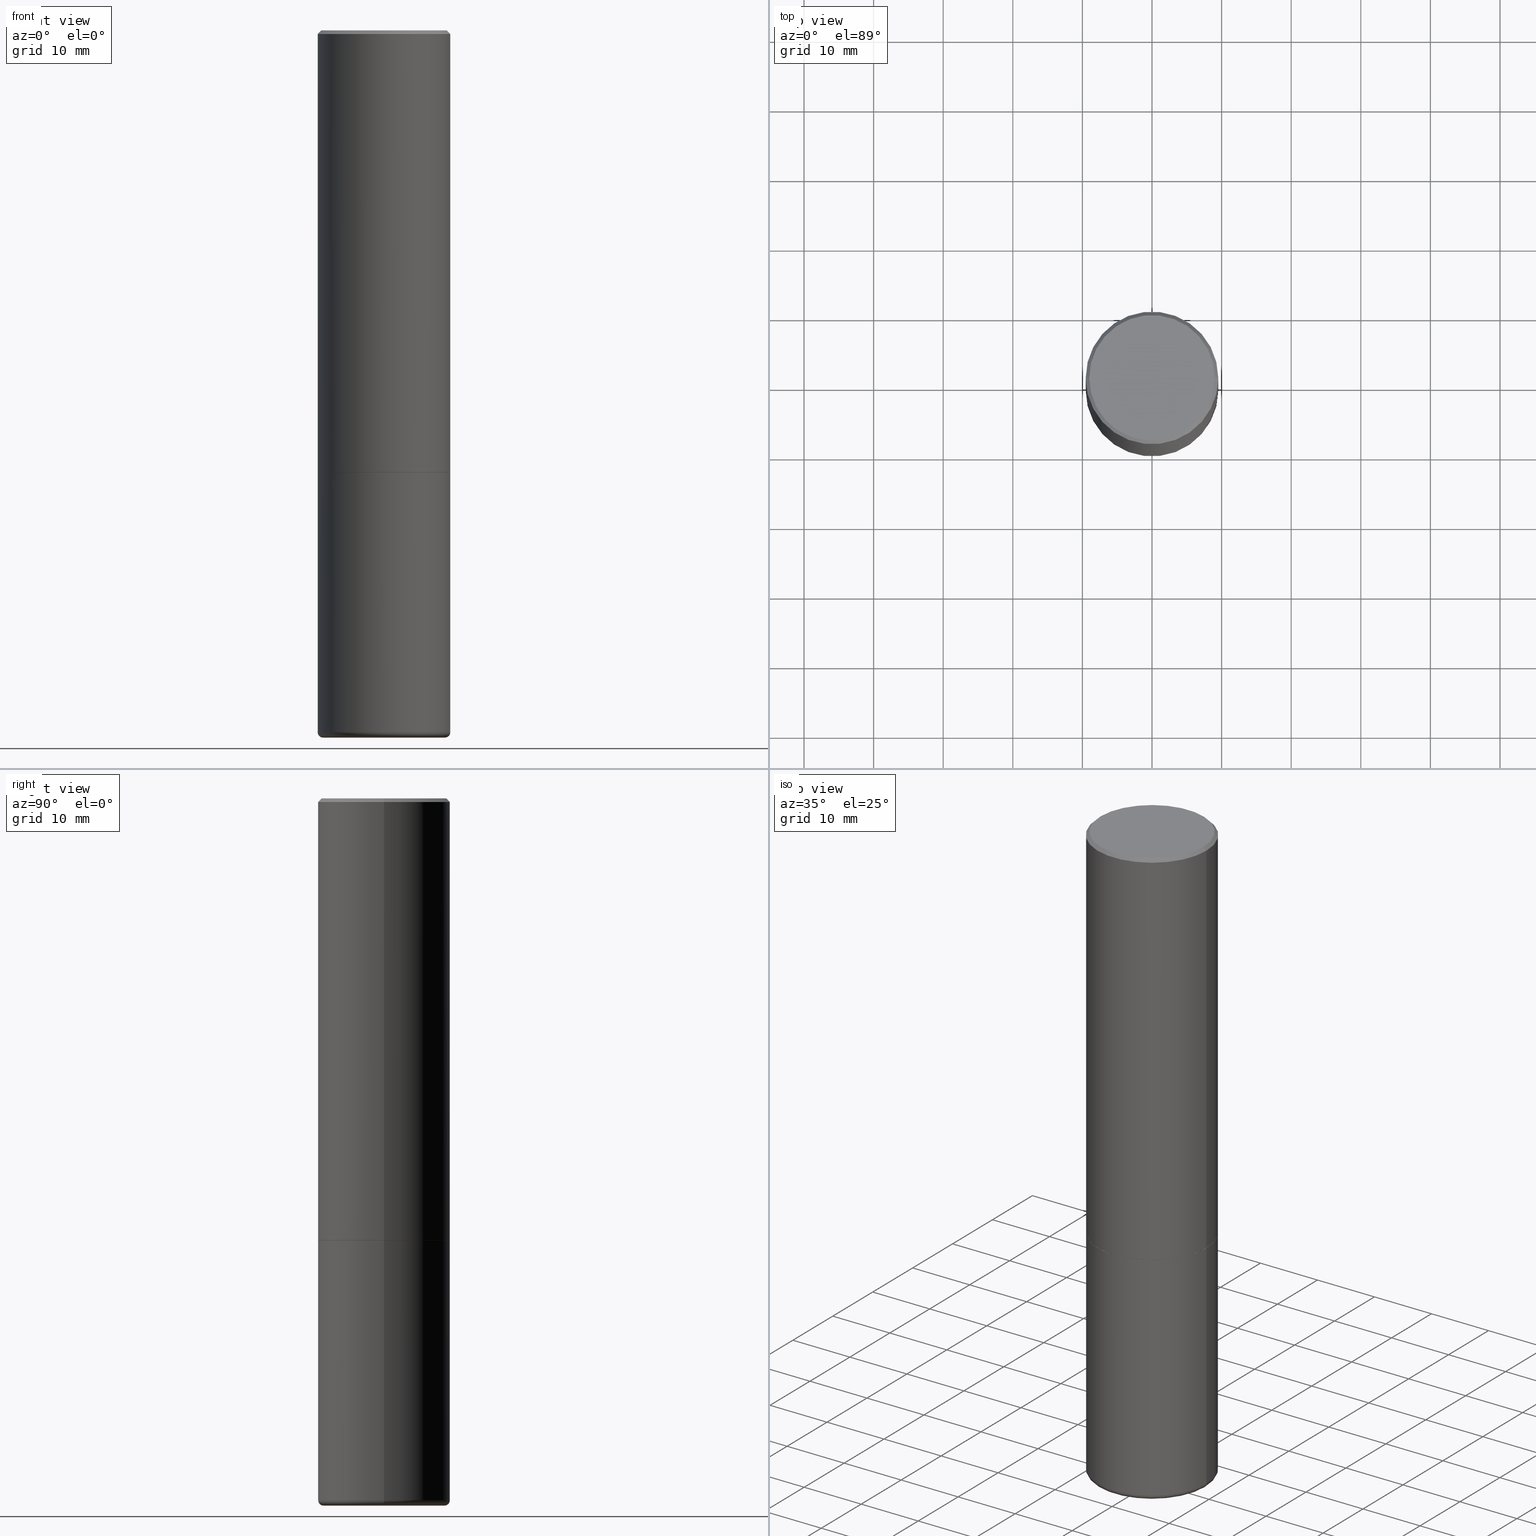
[diagram: canonical four-view strip — front | top / right | iso, engineering-drawing reading convention]
A machine part, canonical four-view strip (front | top / right | iso — engineering-drawing reading convention). The complete STEP part file that produces these views, byte-faithful:
ISO-10303-21;
HEADER;
FILE_DESCRIPTION (( 'STEP AP203' ),
    '1' );
FILE_NAME ('38092.STEP',
    '2023-03-22T20:17:00',
    ( '' ),
    ( '' ),
    'SwSTEP 2.0',
    'SolidWorks 2022',
    '' );
FILE_SCHEMA (( 'CONFIG_CONTROL_DESIGN' ));
ENDSEC;

DATA;
#1 = VECTOR ( 'NONE', #276, 39.37007874015748143 ) ;
#2 = AXIS2_PLACEMENT_3D ( 'NONE', #289, #204, #260 ) ;
#3 = FACE_OUTER_BOUND ( 'NONE', #13, .T. ) ;
#4 = EDGE_CURVE ( 'NONE', #152, #327, #182, .T. ) ;
#5 = LINE ( 'NONE', #280, #1 ) ;
#6 = DIRECTION ( 'NONE',  ( 1.000000000000000000, -6.982962677686265922E-15, 4.876176775795935793E-29 ) ) ;
#7 = CC_DESIGN_SECURITY_CLASSIFICATION ( #89, ( #345 ) ) ;
#8 = CC_DESIGN_PERSON_AND_ORGANIZATION_ASSIGNMENT ( #90, #399, ( #102 ) ) ;
#9 = FACE_OUTER_BOUND ( 'NONE', #384, .T. ) ;
#10 = ORIENTED_EDGE ( 'NONE', *, *, #313, .F. ) ;
#11 = EDGE_CURVE ( 'NONE', #333, #53, #201, .T. ) ;
#12 = ORIENTED_EDGE ( 'NONE', *, *, #30, .T. ) ;
#13 = EDGE_LOOP ( 'NONE', ( #79, #218 ) ) ;
#14 = CIRCLE ( 'NONE', #222, 0.3549999999999997047 ) ;
#15 = EDGE_LOOP ( 'NONE', ( #148, #326, #351, #267 ) ) ;
#16 = VERTEX_POINT ( 'NONE', #95 ) ;
#17 = APPROVAL_ROLE ( '' ) ;
#18 = CARTESIAN_POINT ( 'NONE',  ( 1.060161601562722349E-27, -1.513629795093808134E-13, -43.35208034064213933 ) ) ;
#19 = ADVANCED_FACE ( 'NONE', ( #172 ), #150, .F. ) ;
#20 = APPROVAL_STATUS ( 'not_yet_approved' ) ;
#21 = CIRCLE ( 'NONE', #128, 0.3739999999999999991 ) ;
#22 = LOCAL_TIME ( 16, 17, 0.000000000000000000, #97 ) ;
#23 = FACE_OUTER_BOUND ( 'NONE', #364, .T. ) ;
#24 = AXIS2_PLACEMENT_3D ( 'NONE', #343, #35, #242 ) ;
#25 = PERSON_AND_ORGANIZATION ( #377, #58 ) ;
#26 = FACE_OUTER_BOUND ( 'NONE', #15, .T. ) ;
#27 = PERSON_AND_ORGANIZATION ( #377, #58 ) ;
#28 = CIRCLE ( 'NONE', #161, 0.3749999999999996669 ) ;
#29 = FACE_OUTER_BOUND ( 'NONE', #155, .T. ) ;
#30 = EDGE_CURVE ( 'NONE', #221, #257, #416, .T. ) ;
#31 = EDGE_CURVE ( 'NONE', #327, #152, #409, .T. ) ;
#32 = APPROVAL_DATE_TIME ( #167, #308 ) ;
#33 = LINE ( 'NONE', #300, #111 ) ;
#34 = CARTESIAN_POINT ( 'NONE',  ( -0.3750000000000000555, 2.664535259100376091E-15, -1.844600658845589598E-29 ) ) ;
#35 = DIRECTION ( 'NONE',  ( -2.445468806185136597E-29, 3.491481338843145583E-15, 1.000000000000000000 ) ) ;
#36 = ADVANCED_FACE ( 'NONE', ( #202 ), #317, .F. ) ;
#37 = DIRECTION ( 'NONE',  ( -1.000000000000000000, 6.982962677686265922E-15, -4.876176775795935793E-29 ) ) ;
#38 = CC_DESIGN_APPROVAL ( #308, ( #345 ) ) ;
#39 = AXIS2_PLACEMENT_3D ( 'NONE', #369, #295, #228 ) ;
#40 = LINE ( 'NONE', #415, #334 ) ;
#41 = LINE ( 'NONE', #319, #127 ) ;
#42 = EDGE_CURVE ( 'NONE', #45, #322, #411, .T. ) ;
#43 = EDGE_CURVE ( 'NONE', #191, #322, #196, .T. ) ;
#44 = DIRECTION ( 'NONE',  ( -2.445468806185136877E-29, 3.491481338843145188E-15, 1.000000000000000000 ) ) ;
#45 = VERTEX_POINT ( 'NONE', #336 ) ;
#46 = CC_DESIGN_APPROVAL ( #321, ( #89 ) ) ;
#47 =( LENGTH_UNIT ( ) NAMED_UNIT ( * ) SI_UNIT ( $, .METRE. ) );
#48 = ORIENTED_EDGE ( 'NONE', *, *, #209, .F. ) ;
#49 = ORIENTED_EDGE ( 'NONE', *, *, #405, .F. ) ;
#50 = ORIENTED_EDGE ( 'NONE', *, *, #313, .T. ) ;
#51 = AXIS2_PLACEMENT_3D ( 'NONE', #94, #332, #132 ) ;
#52 = ORIENTED_EDGE ( 'NONE', *, *, #355, .F. ) ;
#53 = VERTEX_POINT ( 'NONE', #138 ) ;
#54 = DATE_TIME_ROLE ( 'creation_date' ) ;
#55 = DIRECTION ( 'NONE',  ( -2.445468806185136597E-29, 3.491481338843145583E-15, 1.000000000000000000 ) ) ;
#56 = ADVANCED_FACE ( 'NONE', ( #229 ), #226, .T. ) ;
#57 = CARTESIAN_POINT ( 'NONE',  ( 0.3750000000000000555, -1.134731435124021338E-14, -2.500000000000000000 ) ) ;
#58 = ORGANIZATION ( 'UNSPECIFIED', 'UNSPECIFIED', '' ) ;
#59 = CALENDAR_DATE ( 2023, 22, 3 ) ;
#60 = VECTOR ( 'NONE', #243, 39.37007874015748143 ) ;
#61 = CARTESIAN_POINT ( 'NONE',  ( -0.3450000000000000289, -1.140995202544984042E-14, -3.970041113957362811 ) ) ;
#62 = ORIENTED_EDGE ( 'NONE', *, *, #389, .T. ) ;
#63 = CALENDAR_DATE ( 2023, 22, 3 ) ;
#64 = DIRECTION ( 'NONE',  ( 1.000000000000000000, -6.982962677686267499E-15, 4.883557194083113462E-29 ) ) ;
#65 = ORIENTED_EDGE ( 'NONE', *, *, #391, .F. ) ;
#66 = APPLICATION_PROTOCOL_DEFINITION ( 'international standard', 'config_control_design', 1994, #407 ) ;
#67 = DIRECTION ( 'NONE',  ( 1.000000000000000000, -6.982962677686267499E-15, 4.883557194083113462E-29 ) ) ;
#68 = DIRECTION ( 'NONE',  ( -2.445468806185136597E-29, 3.491481338843145583E-15, 1.000000000000000000 ) ) ;
#69 = AXIS2_PLACEMENT_3D ( 'NONE', #282, #251, #114 ) ;
#70 = AXIS2_PLACEMENT_3D ( 'NONE', #246, #412, #307 ) ;
#71 = DIRECTION ( 'NONE',  ( 1.000000000000000000, -6.982962677686268288E-15, 0.000000000000000000 ) ) ;
#72 = ADVANCED_FACE ( 'NONE', ( #397 ), #425, .T. ) ;
#73 = DIRECTION ( 'NONE',  ( -2.445468806185136597E-29, 3.491481338843145583E-15, 1.000000000000000000 ) ) ;
#74 = LINE ( 'NONE', #216, #60 ) ;
#75 = CIRCLE ( 'NONE', #70, 0.3750000000000000555 ) ;
#76 = EDGE_CURVE ( 'NONE', #327, #221, #325, .T. ) ;
#77 = DIRECTION ( 'NONE',  ( -2.445468806185136597E-29, 3.491481338843145583E-15, 1.000000000000000000 ) ) ;
#78 = FACE_OUTER_BOUND ( 'NONE', #353, .T. ) ;
#79 = ORIENTED_EDGE ( 'NONE', *, *, #199, .T. ) ;
#80 = DIRECTION ( 'NONE',  ( 2.445468806185136597E-29, -3.491481338843145583E-15, -1.000000000000000000 ) ) ;
#81 = VERTEX_POINT ( 'NONE', #57 ) ;
#82 = APPROVAL_PERSON_ORGANIZATION ( #195, #308, #17 ) ;
#83 = AXIS2_PLACEMENT_3D ( 'NONE', #175, #105, #375 ) ;
#84 = AXIS2_PLACEMENT_3D ( 'NONE', #151, #284, #6 ) ;
#85 = EDGE_LOOP ( 'NONE', ( #10, #12, #387, #134 ) ) ;
#86 = ADVANCED_FACE ( 'NONE', ( #264 ), #395, .T. ) ;
#87 = EDGE_LOOP ( 'NONE', ( #430, #50, #390, #158 ) ) ;
#88 = ORIENTED_EDGE ( 'NONE', *, *, #76, .T. ) ;
#89 = SECURITY_CLASSIFICATION ( '', '', #239 ) ;
#90 = PERSON_AND_ORGANIZATION ( #377, #58 ) ;
#91 = ADVANCED_FACE ( 'NONE', ( #26 ), #429, .T. ) ;
#92 = DIRECTION ( 'NONE',  ( 1.000000000000000000, -6.982962677686264344E-15, 0.000000000000000000 ) ) ;
#93 = DATE_TIME_ROLE ( 'classification_date' ) ;
#94 = CARTESIAN_POINT ( 'NONE',  ( 6.113672015462840371E-29, -8.728703347107863365E-15, -2.499999999999999556 ) ) ;
#95 = CARTESIAN_POINT ( 'NONE',  ( 0.3750000000000000555, -1.134382286990137353E-14, -2.499000000000000998 ) ) ;
#96 = AXIS2_PLACEMENT_3D ( 'NONE', #286, #316, #381 ) ;
#97 = COORDINATED_UNIVERSAL_TIME_OFFSET ( 5, 0, .BEHIND. ) ;
#98 = AXIS2_PLACEMENT_3D ( 'NONE', #358, #428, #129 ) ;
#99 = DIRECTION ( 'NONE',  ( -0.7071067811870063169, 7.493145998872012346E-15, 0.7071067811860887176 ) ) ;
#100 = ORIENTED_EDGE ( 'NONE', *, *, #210, .F. ) ;
#101 = DIRECTION ( 'NONE',  ( 1.000000000000000000, 0.000000000000000000, 0.000000000000000000 ) ) ;
#102 = PRODUCT ( '38092', '38092', '', ( #392 ) ) ;
#103 = DIRECTION ( 'NONE',  ( -2.445468806185136597E-29, 3.491481338843145583E-15, 1.000000000000000000 ) ) ;
#104 = DIRECTION ( 'NONE',  ( -2.445468806185136877E-29, 3.491481338843145188E-15, 1.000000000000000000 ) ) ;
#105 = DIRECTION ( 'NONE',  ( -2.445468806185136597E-29, 3.491481338843145583E-15, 1.000000000000000000 ) ) ;
#106 = EDGE_CURVE ( 'NONE', #333, #324, #33, .T. ) ;
#107 = DIRECTION ( 'NONE',  ( 0.9986295347545742773, -7.033825938271996334E-15, -0.05233595624293620185 ) ) ;
#108 = CARTESIAN_POINT ( 'NONE',  ( 0.3750000000000000555, -1.647993546795453747E-14, -3.970041113957362811 ) ) ;
#109 = LINE ( 'NONE', #34, #245 ) ;
#110 = ADVANCED_FACE ( 'NONE', ( #23 ), #310, .T. ) ;
#111 = VECTOR ( 'NONE', #99, 39.37007874015748143 ) ;
#112 = CARTESIAN_POINT ( 'NONE',  ( 0.000000000000000000, 0.000000000000000000, 0.000000000000000000 ) ) ;
#113 = EDGE_LOOP ( 'NONE', ( #48, #287, #194, #206 ) ) ;
#114 = DIRECTION ( 'NONE',  ( 1.000000000000000000, -6.982962677686264344E-15, 0.000000000000000000 ) ) ;
#115 = ORIENTED_EDGE ( 'NONE', *, *, #432, .T. ) ;
#116 = ORIENTED_EDGE ( 'NONE', *, *, #11, .F. ) ;
#117 = CARTESIAN_POINT ( 'NONE',  ( 0.3749999999999998335, -2.618611004132348439E-15, 1.828566290923475082E-29 ) ) ;
#118 = CARTESIAN_POINT ( 'NONE',  ( 9.781875224740546387E-29, -1.396592535537258233E-14, -4.000000000000000000 ) ) ;
#119 = CC_DESIGN_PERSON_AND_ORGANIZATION_ASSIGNMENT ( #197, #368, ( #89 ) ) ;
#120 = CONICAL_SURFACE ( 'NONE', #232, 0.3749999999999996669, 0.7853981633974473908 ) ;
#121 = VECTOR ( 'NONE', #104, 39.37007874015748143 ) ;
#122 = ORIENTED_EDGE ( 'NONE', *, *, #31, .F. ) ;
#123 = EDGE_LOOP ( 'NONE', ( #301, #320, #237, #435 ) ) ;
#124 = APPROVAL ( #329, 'UNSPECIFIED' ) ;
#125 = PERSON_AND_ORGANIZATION ( #377, #58 ) ;
#126 = CARTESIAN_POINT ( 'NONE',  ( 0.000000000000000000, 0.000000000000000000, 0.000000000000000000 ) ) ;
#127 = VECTOR ( 'NONE', #349, 39.37007874015748143 ) ;
#128 = AXIS2_PLACEMENT_3D ( 'NONE', #376, #68, #213 ) ;
#129 = DIRECTION ( 'NONE',  ( 1.000000000000000000, -6.982962677686265922E-15, 4.876176775795935793E-29 ) ) ;
#130 = MANIFOLD_SOLID_BREP ( 'Body-Move/Copy2[2]', #367 ) ;
#131 = COORDINATED_UNIVERSAL_TIME_OFFSET ( 5, 0, .BEHIND. ) ;
#132 = DIRECTION ( 'NONE',  ( 1.000000000000000000, -6.982962677686268288E-15, 0.000000000000000000 ) ) ;
#133 = DIRECTION ( 'NONE',  ( -1.000000000000000000, 7.105427357600985293E-15, 0.000000000000000000 ) ) ;
#134 = ORIENTED_EDGE ( 'NONE', *, *, #160, .F. ) ;
#135 = ORIENTED_EDGE ( 'NONE', *, *, #160, .T. ) ;
#136 = COORDINATED_UNIVERSAL_TIME_OFFSET ( 5, 0, .BEHIND. ) ;
#137 = CIRCLE ( 'NONE', #83, 0.3549999999999997047 ) ;
#138 = CARTESIAN_POINT ( 'NONE',  ( 0.3739999999999999991, -1.134033138856252737E-14, -2.499999999999999556 ) ) ;
#139 = CARTESIAN_POINT ( 'NONE',  ( -0.3749999999999999445, -1.732985487172565737E-15, -2.499000000000000998 ) ) ;
#140 = EDGE_CURVE ( 'NONE', #324, #16, #174, .T. ) ;
#141 = CARTESIAN_POINT ( 'NONE',  ( 4.890937612370278413E-31, -6.982962677686297772E-17, -0.02000000000000002123 ) ) ;
#142 = CARTESIAN_POINT ( 'NONE',  ( -0.3549999999999997047, 2.513866563967053491E-15, 4.268512490082953109E-18 ) ) ;
#143 = AXIS2_PLACEMENT_3D ( 'NONE', #311, #340, #344 ) ;
#144 = CLOSED_SHELL ( 'NONE', ( #19, #110, #328, #281, #352, #91, #36 ) ) ;
#145 = CARTESIAN_POINT ( 'NONE',  ( 9.738007443366076519E-29, -1.390287413471896070E-14, -3.982001600484653903 ) ) ;
#146 = PLANE ( 'NONE',  #181 ) ;
#147 = LINE ( 'NONE', #383, #211 ) ;
#148 = ORIENTED_EDGE ( 'NONE', *, *, #76, .F. ) ;
#149 = LOCAL_TIME ( 16, 17, 0.000000000000000000, #171 ) ;
#150 = CONICAL_SURFACE ( 'NONE', #249, 751.2258538476771719, 1.518436449235074370 ) ;
#151 = CARTESIAN_POINT ( 'NONE',  ( 6.113672015462842613E-29, -8.728703347107864943E-15, -2.500000000000000000 ) ) ;
#152 = VERTEX_POINT ( 'NONE', #303 ) ;
#153 = ADVANCED_FACE ( 'NONE', ( #29 ), #437, .T. ) ;
#154 = FACE_OUTER_BOUND ( 'NONE', #85, .T. ) ;
#155 = EDGE_LOOP ( 'NONE', ( #354, #436, #115, #423 ) ) ;
#156 = ORIENTED_EDGE ( 'NONE', *, *, #11, .T. ) ;
#157 = CIRCLE ( 'NONE', #69, 0.3750000000000000555 ) ;
#158 = ORIENTED_EDGE ( 'NONE', *, *, #187, .F. ) ;
#159 = DESIGN_CONTEXT ( 'detailed design', #427, 'design' ) ;
#160 = EDGE_CURVE ( 'NONE', #285, #81, #75, .T. ) ;
#161 = AXIS2_PLACEMENT_3D ( 'NONE', #141, #274, #442 ) ;
#162 = ORIENTED_EDGE ( 'NONE', *, *, #106, .T. ) ;
#163 = PERSON_AND_ORGANIZATION ( #377, #58 ) ;
#164 = CARTESIAN_POINT ( 'NONE',  ( 4.890937612370278413E-31, -6.982962677686297772E-17, -0.02000000000000002123 ) ) ;
#165 = LOCAL_TIME ( 16, 17, 0.000000000000000000, #131 ) ;
#166 = AXIS2_PLACEMENT_3D ( 'NONE', #266, #338, #404 ) ;
#167 = DATE_AND_TIME ( #271, #401 ) ;
#168 = CARTESIAN_POINT ( 'NONE',  ( 9.708611703455221728E-29, -1.386132446382218587E-14, -3.970041113957362811 ) ) ;
#169 = LENGTH_MEASURE_WITH_UNIT ( LENGTH_MEASURE( 0.02539999999999999897 ), #47 );
#170 = DIRECTION ( 'NONE',  ( -2.445468806185136597E-29, 3.491481338843145583E-15, 1.000000000000000000 ) ) ;
#171 = COORDINATED_UNIVERSAL_TIME_OFFSET ( 5, 0, .BEHIND. ) ;
#172 = FACE_OUTER_BOUND ( 'NONE', #223, .T. ) ;
#173 =( NAMED_UNIT ( * ) SI_UNIT ( $, .STERADIAN. ) SOLID_ANGLE_UNIT ( ) );
#174 = CIRCLE ( 'NONE', #261, 0.3750000000000000555 ) ;
#175 = CARTESIAN_POINT ( 'NONE',  ( -1.043851414335219820E-46, 1.490343170380447200E-32, 4.268512490100411279E-18 ) ) ;
#176 = EDGE_CURVE ( 'NONE', #252, #327, #74, .T. ) ;
#177 = CARTESIAN_POINT ( 'NONE',  ( -0.3749999999999996669, 2.548781377355484746E-15, -0.02000000000000002123 ) ) ;
#178 = DIRECTION ( 'NONE',  ( -2.445468806185136877E-29, 3.491481338843145188E-15, 1.000000000000000000 ) ) ;
#179 = CC_DESIGN_APPROVAL ( #124, ( #385 ) ) ;
#180 = CARTESIAN_POINT ( 'NONE',  ( 0.3450000000000000289, -1.627044658762394757E-14, -3.970041113957362811 ) ) ;
#181 = AXIS2_PLACEMENT_3D ( 'NONE', #183, #312, #37 ) ;
#182 = CIRCLE ( 'NONE', #235, 0.3434299213127118833 ) ;
#183 = CARTESIAN_POINT ( 'NONE',  ( 2.478951750578622237E-15, 0.3549999999999997047, -1.237341619044265441E-15 ) ) ;
#184 = DIRECTION ( 'NONE',  ( 0.7071067811865469066, -7.319954787623254468E-15, -0.7071067811865481278 ) ) ;
#185 = DIRECTION ( 'NONE',  ( -2.445468806185136597E-29, 3.491481338843145583E-15, 1.000000000000000000 ) ) ;
#186 = ORIENTED_EDGE ( 'NONE', *, *, #263, .T. ) ;
#187 = EDGE_CURVE ( 'NONE', #257, #81, #378, .T. ) ;
#188 = DIRECTION ( 'NONE',  ( 1.000000000000000000, -6.982962677686265922E-15, 4.876176775795935793E-29 ) ) ;
#189 = ORIENTED_EDGE ( 'NONE', *, *, #263, .F. ) ;
#190 = DIRECTION ( 'NONE',  ( 1.000000000000000000, -6.982962677686265133E-15, 0.000000000000000000 ) ) ;
#191 = VERTEX_POINT ( 'NONE', #142 ) ;
#192 = AXIS2_PLACEMENT_3D ( 'NONE', #396, #198, #433 ) ;
#193 = ORIENTED_EDGE ( 'NONE', *, *, #176, .T. ) ;
#194 = ORIENTED_EDGE ( 'NONE', *, *, #42, .T. ) ;
#195 = PERSON_AND_ORGANIZATION ( #377, #58 ) ;
#196 = LINE ( 'NONE', #231, #304 ) ;
#197 = PERSON_AND_ORGANIZATION ( #377, #58 ) ;
#198 = DIRECTION ( 'NONE',  ( -2.445468806185136597E-29, 3.491481338843145583E-15, 1.000000000000000000 ) ) ;
#199 = EDGE_CURVE ( 'NONE', #191, #402, #14, .T. ) ;
#200 = DATE_AND_TIME ( #59, #165 ) ;
#201 = CIRCLE ( 'NONE', #2, 0.3739999999999999991 ) ;
#202 = FACE_OUTER_BOUND ( 'NONE', #318, .T. ) ;
#203 = APPLICATION_PROTOCOL_DEFINITION ( 'international standard', 'config_control_design', 1994, #427 ) ;
#204 = DIRECTION ( 'NONE',  ( -2.445468806185136597E-29, 3.491481338843145583E-15, 1.000000000000000000 ) ) ;
#205 = UNCERTAINTY_MEASURE_WITH_UNIT (LENGTH_MEASURE( 1.000000000000000082E-05 ), #362, 'distance_accuracy_value', 'NONE');
#206 = ORIENTED_EDGE ( 'NONE', *, *, #43, .F. ) ;
#207 = DATE_AND_TIME ( #262, #149 ) ;
#208 = DIRECTION ( 'NONE',  ( 2.445468806185136597E-29, -3.491481338843145583E-15, -1.000000000000000000 ) ) ;
#209 = EDGE_CURVE ( 'NONE', #402, #191, #137, .T. ) ;
#210 = EDGE_CURVE ( 'NONE', #53, #333, #21, .T. ) ;
#211 = VECTOR ( 'NONE', #184, 39.37007874015748143 ) ;
#212 = CARTESIAN_POINT ( 'NONE',  ( -0.3434299213127118833, -1.136124910089014506E-14, -4.000000000000000000 ) ) ;
#213 = DIRECTION ( 'NONE',  ( 1.000000000000000000, -6.982962677686268288E-15, 0.000000000000000000 ) ) ;
#214 = FACE_OUTER_BOUND ( 'NONE', #269, .T. ) ;
#215 = DIRECTION ( 'NONE',  ( 1.000000000000000000, -6.982962677686265922E-15, 4.876231632511992107E-29 ) ) ;
#216 = CARTESIAN_POINT ( 'NONE',  ( -2.101446166510338618E-19, -1.390308427933570764E-14, -3.982001600484653903 ) ) ;
#217 = CARTESIAN_POINT ( 'NONE',  ( 4.890937612370278413E-31, -6.982962677686297772E-17, -0.02000000000000002123 ) ) ;
#218 = ORIENTED_EDGE ( 'NONE', *, *, #209, .T. ) ;
#219 = ADVANCED_FACE ( 'NONE', ( #214 ), #379, .T. ) ;
#220 = DIRECTION ( 'NONE',  ( -1.000000000000000000, 6.982962677686266711E-15, 0.000000000000000000 ) ) ;
#221 = VERTEX_POINT ( 'NONE', #380 ) ;
#222 = AXIS2_PLACEMENT_3D ( 'NONE', #408, #73, #215 ) ;
#223 = EDGE_LOOP ( 'NONE', ( #418, #186, #122 ) ) ;
#224 = ORIENTED_EDGE ( 'NONE', *, *, #4, .T. ) ;
#225 = ORIENTED_EDGE ( 'NONE', *, *, #296, .F. ) ;
#226 = CONICAL_SURFACE ( 'NONE', #51, 0.3739999999999999991, 0.7853981633980972044 ) ;
#227 = APPROVAL_ROLE ( '' ) ;
#228 = DIRECTION ( 'NONE',  ( -1.000000000000000000, 6.982962677686266711E-15, 0.000000000000000000 ) ) ;
#229 = FACE_OUTER_BOUND ( 'NONE', #388, .T. ) ;
#230 = CC_DESIGN_PERSON_AND_ORGANIZATION_ASSIGNMENT ( #163, #294, ( #345 ) ) ;
#231 = CARTESIAN_POINT ( 'NONE',  ( -0.3749999999999996669, 2.548781377355484746E-15, -0.02000000000000002123 ) ) ;
#232 = AXIS2_PLACEMENT_3D ( 'NONE', #217, #80, #220 ) ;
#233 = AXIS2_PLACEMENT_3D ( 'NONE', #434, #55, #272 ) ;
#234 = CALENDAR_DATE ( 2023, 22, 3 ) ;
#235 = AXIS2_PLACEMENT_3D ( 'NONE', #118, #255, #190 ) ;
#236 = CARTESIAN_POINT ( 'NONE',  ( 6.111226546656659252E-29, -8.725211865769023513E-15, -2.499000000000000998 ) ) ;
#237 = ORIENTED_EDGE ( 'NONE', *, *, #42, .F. ) ;
#238 = CC_DESIGN_PERSON_AND_ORGANIZATION_ASSIGNMENT ( #25, #302, ( #385 ) ) ;
#239 = SECURITY_CLASSIFICATION_LEVEL ( 'unclassified' ) ;
#240 = DIRECTION ( 'NONE',  ( 1.000000000000000000, -6.982962677686265922E-15, 4.876176775795935793E-29 ) ) ;
#241 = PLANE ( 'NONE',  #143 ) ;
#242 = DIRECTION ( 'NONE',  ( 1.000000000000000000, -6.982962677686264344E-15, 0.000000000000000000 ) ) ;
#243 = DIRECTION ( 'NONE',  ( -0.9986295347545742773, 6.790662755453668466E-15, -0.05233595624293620185 ) ) ;
#244 = PRODUCT_RELATED_PRODUCT_CATEGORY ( 'detail', '', ( #102 ) ) ;
#245 = VECTOR ( 'NONE', #178, 39.37007874015748143 ) ;
#246 = CARTESIAN_POINT ( 'NONE',  ( 6.113672015462842613E-29, -8.728703347107864943E-15, -2.500000000000000000 ) ) ;
#247 = AXIS2_PLACEMENT_3D ( 'NONE', #337, #259, #101 ) ;
#248 = FACE_OUTER_BOUND ( 'NONE', #87, .T. ) ;
#249 = AXIS2_PLACEMENT_3D ( 'NONE', #18, #208, #330 ) ;
#250 = EDGE_CURVE ( 'NONE', #152, #257, #275, .T. ) ;
#251 = DIRECTION ( 'NONE',  ( -2.445468806185136597E-29, 3.491481338843145583E-15, 1.000000000000000000 ) ) ;
#252 = VERTEX_POINT ( 'NONE', #145 ) ;
#253 = CARTESIAN_POINT ( 'NONE',  ( 0.3549999999999997047, -2.538996582575038287E-15, 4.268512490117958041E-18 ) ) ;
#254 = EDGE_LOOP ( 'NONE', ( #62, #135 ) ) ;
#255 = DIRECTION ( 'NONE',  ( -2.445468806185136597E-29, 3.491481338843145583E-15, 1.000000000000000000 ) ) ;
#256 = DIMENSIONAL_EXPONENTS ( 1.000000000000000000, 0.000000000000000000, 0.000000000000000000, 0.000000000000000000, 0.000000000000000000, 0.000000000000000000, 0.000000000000000000 ) ;
#257 = VERTEX_POINT ( 'NONE', #108 ) ;
#258 = ORIENTED_EDGE ( 'NONE', *, *, #210, .T. ) ;
#259 = DIRECTION ( 'NONE',  ( 0.000000000000000000, 0.000000000000000000, 1.000000000000000000 ) ) ;
#260 = DIRECTION ( 'NONE',  ( 1.000000000000000000, -6.982962677686268288E-15, 0.000000000000000000 ) ) ;
#261 = AXIS2_PLACEMENT_3D ( 'NONE', #236, #394, #92 ) ;
#262 = CALENDAR_DATE ( 2023, 22, 3 ) ;
#263 = EDGE_CURVE ( 'NONE', #252, #152, #40, .T. ) ;
#264 = FACE_OUTER_BOUND ( 'NONE', #113, .T. ) ;
#265 = ORIENTED_EDGE ( 'NONE', *, *, #355, .T. ) ;
#266 = CARTESIAN_POINT ( 'NONE',  ( 1.060161601562722349E-27, -1.513629795093808134E-13, -43.35208034064213933 ) ) ;
#267 = ORIENTED_EDGE ( 'NONE', *, *, #30, .F. ) ;
#268 = DIRECTION ( 'NONE',  ( -2.445468806185136597E-29, 3.491481338843145583E-15, 1.000000000000000000 ) ) ;
#269 = EDGE_LOOP ( 'NONE', ( #258, #162, #225, #52 ) ) ;
#270 = AXIS2_PLACEMENT_3D ( 'NONE', #164, #170, #363 ) ;
#271 = CALENDAR_DATE ( 2023, 22, 3 ) ;
#272 = DIRECTION ( 'NONE',  ( 1.000000000000000000, -6.982962677686265133E-15, 0.000000000000000000 ) ) ;
#273 = DIRECTION ( 'NONE',  ( 1.000000000000000000, -6.982962677686265922E-15, 4.876176775795935793E-29 ) ) ;
#274 = DIRECTION ( 'NONE',  ( -2.445468806185136597E-29, 3.491481338843145583E-15, 1.000000000000000000 ) ) ;
#275 = CIRCLE ( 'NONE', #366, 0.03000000000000002318 ) ;
#276 = DIRECTION ( 'NONE',  ( -2.445468806185136877E-29, 3.491481338843145188E-15, 1.000000000000000000 ) ) ;
#277 = ADVANCED_FACE ( 'NONE', ( #3 ), #146, .F. ) ;
#278 = MANIFOLD_SOLID_BREP ( 'Body-Move/Copy2[1]', #144 ) ;
#279 = DIRECTION ( 'NONE',  ( -2.445468806185136597E-29, 3.491481338843145583E-15, 1.000000000000000000 ) ) ;
#280 = CARTESIAN_POINT ( 'NONE',  ( -0.3749999999999998335, 2.664535259100374514E-15, -1.844600658845588757E-29 ) ) ;
#281 = ADVANCED_FACE ( 'NONE', ( #306 ), #241, .F. ) ;
#282 = CARTESIAN_POINT ( 'NONE',  ( 6.113672015462842613E-29, -8.728703347107864943E-15, -2.500000000000000000 ) ) ;
#283 = EDGE_CURVE ( 'NONE', #324, #322, #5, .T. ) ;
#284 = DIRECTION ( 'NONE',  ( -2.438088387897960049E-29, 3.491481338843145188E-15, 1.000000000000000000 ) ) ;
#285 = VERTEX_POINT ( 'NONE', #438 ) ;
#286 = CARTESIAN_POINT ( 'NONE',  ( 9.708611703455221728E-29, -1.386132446382218587E-14, -3.970041113957362811 ) ) ;
#287 = ORIENTED_EDGE ( 'NONE', *, *, #405, .T. ) ;
#288 = LOCAL_TIME ( 16, 17, 0.000000000000000000, #370 ) ;
#289 = CARTESIAN_POINT ( 'NONE',  ( 6.113672015462840371E-29, -8.728703347107863365E-15, -2.499999999999999556 ) ) ;
#290 = AXIS2_PLACEMENT_3D ( 'NONE', #168, #299, #64 ) ;
#291 = ORIENTED_EDGE ( 'NONE', *, *, #250, .F. ) ;
#292 = DIRECTION ( 'NONE',  ( -0.7071067811865469066, 2.468850131082250355E-15, -0.7071067811865481278 ) ) ;
#293 = CC_DESIGN_PERSON_AND_ORGANIZATION_ASSIGNMENT ( #125, #403, ( #345 ) ) ;
#294 = PERSON_AND_ORGANIZATION_ROLE ( 'design_supplier' ) ;
#295 = DIRECTION ( 'NONE',  ( 2.445468806185136597E-29, -3.491481338843145583E-15, -1.000000000000000000 ) ) ;
#296 = EDGE_CURVE ( 'NONE', #16, #324, #386, .T. ) ;
#297 = AXIS2_PLACEMENT_3D ( 'NONE', #126, #103, #240 ) ;
#298 = APPROVAL_STATUS ( 'not_yet_approved' ) ;
#299 = DIRECTION ( 'NONE',  ( -2.445468806185136597E-29, 3.491481338843145583E-15, 1.000000000000000000 ) ) ;
#300 = CARTESIAN_POINT ( 'NONE',  ( -0.3739999999999999991, -6.071273515365087887E-15, -2.499999999999999556 ) ) ;
#301 = ORIENTED_EDGE ( 'NONE', *, *, #296, .T. ) ;
#302 = PERSON_AND_ORGANIZATION_ROLE ( 'creator' ) ;
#303 = CARTESIAN_POINT ( 'NONE',  ( 0.3434299213127118833, -1.636408367829998185E-14, -4.000000000000000000 ) ) ;
#304 = VECTOR ( 'NONE', #292, 39.37007874015748143 ) ;
#305 = DATE_AND_TIME ( #234, #22 ) ;
#306 = FACE_OUTER_BOUND ( 'NONE', #254, .T. ) ;
#307 = DIRECTION ( 'NONE',  ( 1.000000000000000000, -6.982962677686264344E-15, 0.000000000000000000 ) ) ;
#308 = APPROVAL ( #20, 'UNSPECIFIED' ) ;
#309 = CARTESIAN_POINT ( 'NONE',  ( 0.000000000000000000, 0.000000000000000000, 0.000000000000000000 ) ) ;
#310 = TOROIDAL_SURFACE ( 'NONE', #290, 0.3450000000000000289, 0.03000000000000000583 ) ;
#311 = CARTESIAN_POINT ( 'NONE',  ( 2.618611004132411153E-15, 0.3749999999999912847, -2.500000000000001332 ) ) ;
#312 = DIRECTION ( 'NONE',  ( 2.438088387897960049E-29, -3.491481338843145188E-15, -1.000000000000000000 ) ) ;
#313 = EDGE_CURVE ( 'NONE', #221, #285, #109, .T. ) ;
#314 = AXIS2_PLACEMENT_3D ( 'NONE', #309, #77, #273 ) ;
#315 = PLANE ( 'NONE',  #84 ) ;
#316 = DIRECTION ( 'NONE',  ( -2.445468806185136597E-29, 3.491481338843145583E-15, 1.000000000000000000 ) ) ;
#317 = CONICAL_SURFACE ( 'NONE', #166, 751.2258538476771719, 1.518436449235074370 ) ;
#318 = EDGE_LOOP ( 'NONE', ( #189, #193, #422 ) ) ;
#319 = CARTESIAN_POINT ( 'NONE',  ( 0.3739999999999999991, -1.134033138856252737E-14, -2.499999999999999556 ) ) ;
#320 = ORIENTED_EDGE ( 'NONE', *, *, #283, .T. ) ;
#321 = APPROVAL ( #298, 'UNSPECIFIED' ) ;
#322 = VERTEX_POINT ( 'NONE', #177 ) ;
#323 = VECTOR ( 'NONE', #44, 39.37007874015748143 ) ;
#324 = VERTEX_POINT ( 'NONE', #139 ) ;
#325 = CIRCLE ( 'NONE', #346, 0.03000000000000002318 ) ;
#326 = ORIENTED_EDGE ( 'NONE', *, *, #31, .T. ) ;
#327 = VERTEX_POINT ( 'NONE', #212 ) ;
#328 = ADVANCED_FACE ( 'NONE', ( #248 ), #348, .T. ) ;
#329 = APPROVAL_STATUS ( 'not_yet_approved' ) ;
#330 = DIRECTION ( 'NONE',  ( -1.000000000000000000, 6.982962677686267499E-15, 0.000000000000000000 ) ) ;
#331 = APPROVAL_DATE_TIME ( #305, #124 ) ;
#332 = DIRECTION ( 'NONE',  ( -2.445468806185136597E-29, 3.491481338843145583E-15, 1.000000000000000000 ) ) ;
#333 = VERTEX_POINT ( 'NONE', #441 ) ;
#334 = VECTOR ( 'NONE', #107, 39.37007874015748143 ) ;
#335 =( NAMED_UNIT ( * ) PLANE_ANGLE_UNIT ( ) SI_UNIT ( $, .RADIAN. ) );
#336 = CARTESIAN_POINT ( 'NONE',  ( 0.3749999999999996669, -2.642516375941185268E-15, -0.02000000000000002123 ) ) ;
#337 = CARTESIAN_POINT ( 'NONE',  ( 0.000000000000000000, 0.000000000000000000, 0.000000000000000000 ) ) ;
#338 = DIRECTION ( 'NONE',  ( 2.445468806185136597E-29, -3.491481338843145583E-15, -1.000000000000000000 ) ) ;
#339 = APPROVAL_PERSON_ORGANIZATION ( #360, #321, #431 ) ;
#340 = DIRECTION ( 'NONE',  ( 2.438088387897960049E-29, -3.491481338843145188E-15, -1.000000000000000000 ) ) ;
#341 = EDGE_CURVE ( 'NONE', #322, #45, #28, .T. ) ;
#342 = SHAPE_DEFINITION_REPRESENTATION ( #440, #359 ) ;
#343 = CARTESIAN_POINT ( 'NONE',  ( 6.111226546656659252E-29, -8.725211865769023513E-15, -2.499000000000000998 ) ) ;
#344 = DIRECTION ( 'NONE',  ( -1.000000000000000000, 6.982962677686265922E-15, -4.876176775795935793E-29 ) ) ;
#345 = PRODUCT_DEFINITION_FORMATION_WITH_SPECIFIED_SOURCE ( 'ANY', '', #102, .NOT_KNOWN. ) ;
#346 = AXIS2_PLACEMENT_3D ( 'NONE', #61, #361, #133 ) ;
#347 = DIRECTION ( 'NONE',  ( -6.982962677686266711E-15, -1.000000000000000000, 3.491481338843145583E-15 ) ) ;
#348 = CYLINDRICAL_SURFACE ( 'NONE', #314, 0.3750000000000000555 ) ;
#349 = DIRECTION ( 'NONE',  ( 0.7071067811870063169, -2.468850131087062801E-15, 0.7071067811860887176 ) ) ;
#350 = ORIENTED_EDGE ( 'NONE', *, *, #140, .F. ) ;
#351 = ORIENTED_EDGE ( 'NONE', *, *, #250, .T. ) ;
#352 = ADVANCED_FACE ( 'NONE', ( #154 ), #417, .T. ) ;
#353 = EDGE_LOOP ( 'NONE', ( #49, #382, #420, #424 ) ) ;
#354 = ORIENTED_EDGE ( 'NONE', *, *, #283, .F. ) ;
#355 = EDGE_CURVE ( 'NONE', #53, #16, #41, .T. ) ;
#356 = ORIENTED_EDGE ( 'NONE', *, *, #106, .F. ) ;
#357 = AXIS2_PLACEMENT_3D ( 'NONE', #400, #268, #67 ) ;
#358 = CARTESIAN_POINT ( 'NONE',  ( 0.000000000000000000, 0.000000000000000000, 0.000000000000000000 ) ) ;
#359 = ADVANCED_BREP_SHAPE_REPRESENTATION ( '38092', ( #278, #130, #247 ), #410 ) ;
#360 = PERSON_AND_ORGANIZATION ( #377, #58 ) ;
#361 = DIRECTION ( 'NONE',  ( 7.105427357601001859E-15, 1.000000000000000000, -3.491481338843145583E-15 ) ) ;
#362 =( CONVERSION_BASED_UNIT ( 'INCH', #169 ) LENGTH_UNIT ( ) NAMED_UNIT ( #256 ) );
#363 = DIRECTION ( 'NONE',  ( 1.000000000000000000, -6.982962677686266711E-15, 0.000000000000000000 ) ) ;
#364 = EDGE_LOOP ( 'NONE', ( #224, #88, #65, #291 ) ) ;
#365 = APPROVAL_PERSON_ORGANIZATION ( #27, #124, #227 ) ;
#366 = AXIS2_PLACEMENT_3D ( 'NONE', #180, #347, #406 ) ;
#367 = CLOSED_SHELL ( 'NONE', ( #219, #72, #86, #419, #153, #56, #439, #277 ) ) ;
#368 = PERSON_AND_ORGANIZATION_ROLE ( 'classification_officer' ) ;
#369 = CARTESIAN_POINT ( 'NONE',  ( 4.890937612370278413E-31, -6.982962677686297772E-17, -0.02000000000000002123 ) ) ;
#370 = COORDINATED_UNIVERSAL_TIME_OFFSET ( 5, 0, .BEHIND. ) ;
#371 = CARTESIAN_POINT ( 'NONE',  ( 0.3750000000000000555, -2.618611004132350016E-15, 1.828566290923476203E-29 ) ) ;
#372 = CC_DESIGN_DATE_AND_TIME_ASSIGNMENT ( #207, #54, ( #385 ) ) ;
#373 = CIRCLE ( 'NONE', #96, 0.3750000000000000555 ) ;
#374 = AXIS2_PLACEMENT_3D ( 'NONE', #414, #279, #71 ) ;
#375 = DIRECTION ( 'NONE',  ( 1.000000000000000000, -6.982962677686265922E-15, 4.876231632511992107E-29 ) ) ;
#376 = CARTESIAN_POINT ( 'NONE',  ( 6.113672015462840371E-29, -8.728703347107863365E-15, -2.499999999999999556 ) ) ;
#377 = PERSON ( 'UNSPECIFIED', 'UNSPECIFIED', 'UNSPECIFIED', ('UNSPECIFIED'), ('UNSPECIFIED'), ('UNSPECIFIED') ) ;
#378 = LINE ( 'NONE', #371, #121 ) ;
#379 = CONICAL_SURFACE ( 'NONE', #374, 0.3739999999999999991, 0.7853981633980972044 ) ;
#380 = CARTESIAN_POINT ( 'NONE',  ( -0.3750000000000000555, -8.630478646364648921E-15, -3.970041113957362811 ) ) ;
#381 = DIRECTION ( 'NONE',  ( 1.000000000000000000, -6.982962677686266711E-15, 0.000000000000000000 ) ) ;
#382 = ORIENTED_EDGE ( 'NONE', *, *, #199, .F. ) ;
#383 = CARTESIAN_POINT ( 'NONE',  ( 0.3749999999999996669, -2.642516375941185268E-15, -0.02000000000000002123 ) ) ;
#384 = EDGE_LOOP ( 'NONE', ( #100, #116 ) ) ;
#385 = PRODUCT_DEFINITION ( 'UNKNOWN', '', #345, #159 ) ;
#386 = CIRCLE ( 'NONE', #24, 0.3750000000000000555 ) ;
#387 = ORIENTED_EDGE ( 'NONE', *, *, #187, .T. ) ;
#388 = EDGE_LOOP ( 'NONE', ( #356, #156, #265, #350 ) ) ;
#389 = EDGE_CURVE ( 'NONE', #81, #285, #157, .T. ) ;
#390 = ORIENTED_EDGE ( 'NONE', *, *, #389, .F. ) ;
#391 = EDGE_CURVE ( 'NONE', #257, #221, #373, .T. ) ;
#392 = MECHANICAL_CONTEXT ( 'NONE', #407, 'mechanical' ) ;
#393 = AXIS2_PLACEMENT_3D ( 'NONE', #112, #185, #188 ) ;
#394 = DIRECTION ( 'NONE',  ( -2.445468806185136597E-29, 3.491481338843145583E-15, 1.000000000000000000 ) ) ;
#395 = CONICAL_SURFACE ( 'NONE', #39, 0.3749999999999996669, 0.7853981633974473908 ) ;
#396 = CARTESIAN_POINT ( 'NONE',  ( 9.708611703455221728E-29, -1.386132446382218587E-14, -3.970041113957362811 ) ) ;
#397 = FACE_OUTER_BOUND ( 'NONE', #123, .T. ) ;
#398 = CC_DESIGN_DATE_AND_TIME_ASSIGNMENT ( #426, #93, ( #89 ) ) ;
#399 = PERSON_AND_ORGANIZATION_ROLE ( 'design_owner' ) ;
#400 = CARTESIAN_POINT ( 'NONE',  ( 9.708611703455221728E-29, -1.386132446382218587E-14, -3.970041113957362811 ) ) ;
#401 = LOCAL_TIME ( 16, 17, 0.000000000000000000, #136 ) ;
#402 = VERTEX_POINT ( 'NONE', #253 ) ;
#403 = PERSON_AND_ORGANIZATION_ROLE ( 'creator' ) ;
#404 = DIRECTION ( 'NONE',  ( -1.000000000000000000, 6.982962677686267499E-15, 0.000000000000000000 ) ) ;
#405 = EDGE_CURVE ( 'NONE', #402, #45, #147, .T. ) ;
#406 = DIRECTION ( 'NONE',  ( 1.000000000000000000, -6.982962677686262766E-15, 0.000000000000000000 ) ) ;
#407 = APPLICATION_CONTEXT ( 'configuration controlled 3d designs of mechanical parts and assemblies' ) ;
#408 = CARTESIAN_POINT ( 'NONE',  ( -1.043851414335219820E-46, 1.490343170380447200E-32, 4.268512490100411279E-18 ) ) ;
#409 = CIRCLE ( 'NONE', #233, 0.3434299213127118833 ) ;
#410 =( GEOMETRIC_REPRESENTATION_CONTEXT ( 3 ) GLOBAL_UNCERTAINTY_ASSIGNED_CONTEXT ( ( #205 ) ) GLOBAL_UNIT_ASSIGNED_CONTEXT ( ( #362, #335, #173 ) ) REPRESENTATION_CONTEXT ( 'NONE', 'WORKASPACE' ) );
#411 = CIRCLE ( 'NONE', #270, 0.3749999999999996669 ) ;
#412 = DIRECTION ( 'NONE',  ( -2.445468806185136597E-29, 3.491481338843145583E-15, 1.000000000000000000 ) ) ;
#413 = APPROVAL_DATE_TIME ( #200, #321 ) ;
#414 = CARTESIAN_POINT ( 'NONE',  ( 6.113672015462840371E-29, -8.728703347107863365E-15, -2.499999999999999556 ) ) ;
#415 = CARTESIAN_POINT ( 'NONE',  ( 2.101446168457910959E-19, -1.390308427933570764E-14, -3.982001600484653903 ) ) ;
#416 = CIRCLE ( 'NONE', #192, 0.3750000000000000555 ) ;
#417 = CYLINDRICAL_SURFACE ( 'NONE', #393, 0.3750000000000000555 ) ;
#418 = ORIENTED_EDGE ( 'NONE', *, *, #176, .F. ) ;
#419 = ADVANCED_FACE ( 'NONE', ( #78 ), #120, .T. ) ;
#420 = ORIENTED_EDGE ( 'NONE', *, *, #43, .T. ) ;
#421 = LINE ( 'NONE', #117, #323 ) ;
#422 = ORIENTED_EDGE ( 'NONE', *, *, #4, .F. ) ;
#423 = ORIENTED_EDGE ( 'NONE', *, *, #341, .F. ) ;
#424 = ORIENTED_EDGE ( 'NONE', *, *, #341, .T. ) ;
#425 = CYLINDRICAL_SURFACE ( 'NONE', #297, 0.3749999999999998335 ) ;
#426 = DATE_AND_TIME ( #63, #288 ) ;
#427 = APPLICATION_CONTEXT ( 'configuration controlled 3d designs of mechanical parts and assemblies' ) ;
#428 = DIRECTION ( 'NONE',  ( -2.445468806185136597E-29, 3.491481338843145583E-15, 1.000000000000000000 ) ) ;
#429 = TOROIDAL_SURFACE ( 'NONE', #357, 0.3450000000000000289, 0.03000000000000000583 ) ;
#430 = ORIENTED_EDGE ( 'NONE', *, *, #391, .T. ) ;
#431 = APPROVAL_ROLE ( '' ) ;
#432 = EDGE_CURVE ( 'NONE', #16, #45, #421, .T. ) ;
#433 = DIRECTION ( 'NONE',  ( 1.000000000000000000, -6.982962677686266711E-15, 0.000000000000000000 ) ) ;
#434 = CARTESIAN_POINT ( 'NONE',  ( 9.781875224740546387E-29, -1.396592535537258233E-14, -4.000000000000000000 ) ) ;
#435 = ORIENTED_EDGE ( 'NONE', *, *, #432, .F. ) ;
#436 = ORIENTED_EDGE ( 'NONE', *, *, #140, .T. ) ;
#437 = CYLINDRICAL_SURFACE ( 'NONE', #98, 0.3749999999999998335 ) ;
#438 = CARTESIAN_POINT ( 'NONE',  ( -0.3750000000000000555, -8.630478646364648921E-15, -2.500000000000000000 ) ) ;
#439 = ADVANCED_FACE ( 'NONE', ( #9 ), #315, .F. ) ;
#440 = PRODUCT_DEFINITION_SHAPE ( 'NONE', 'NONE',  #385 ) ;
#441 = CARTESIAN_POINT ( 'NONE',  ( -0.3739999999999999991, -6.065975061016867852E-15, -2.499999999999999556 ) ) ;
#442 = DIRECTION ( 'NONE',  ( 1.000000000000000000, -6.982962677686266711E-15, 0.000000000000000000 ) ) ;
ENDSEC;
END-ISO-10303-21;
